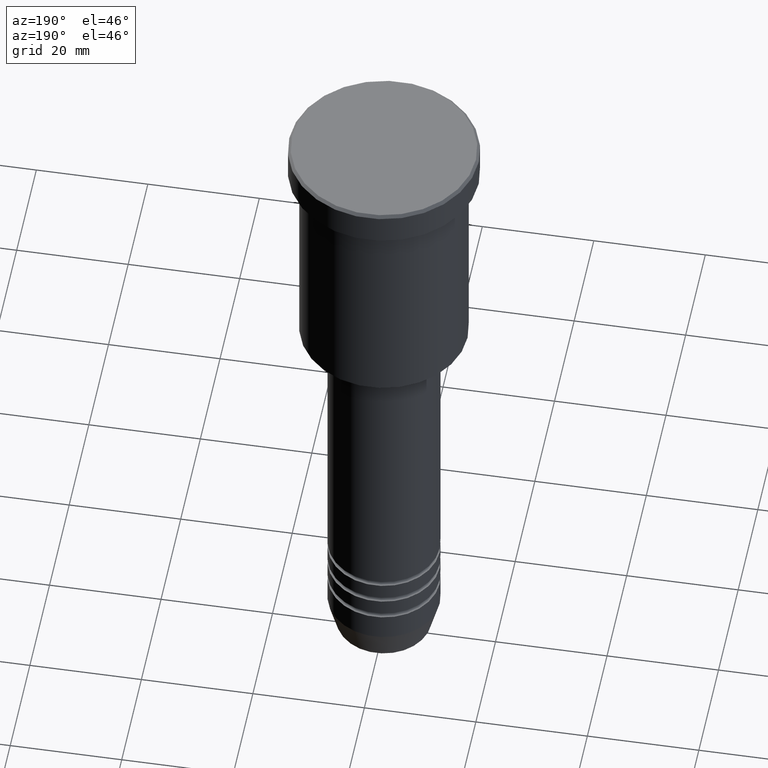
[diagram: clean part render]
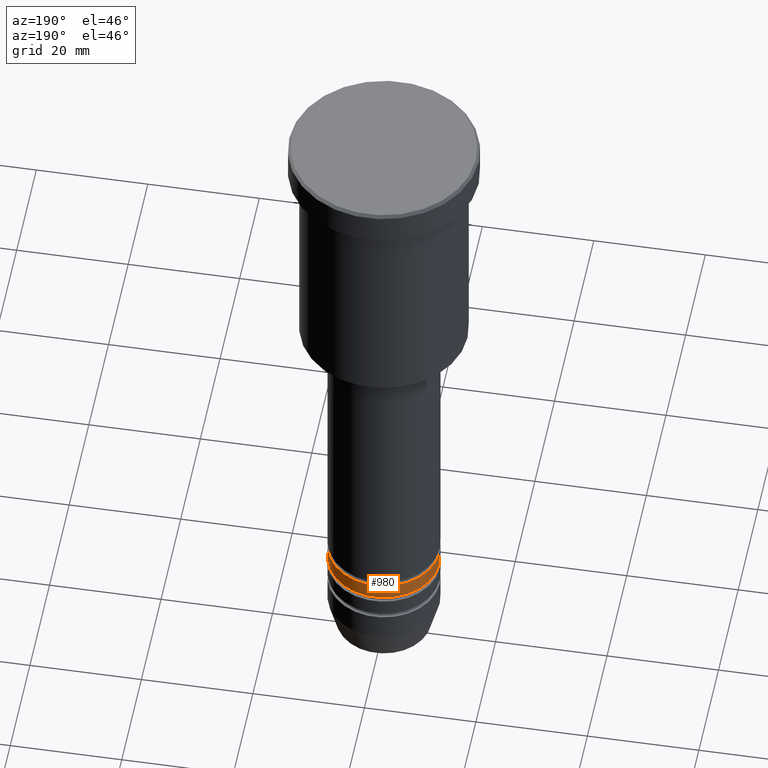
[diagram: same view with one face highlighted and labeled with its STEP entity id]
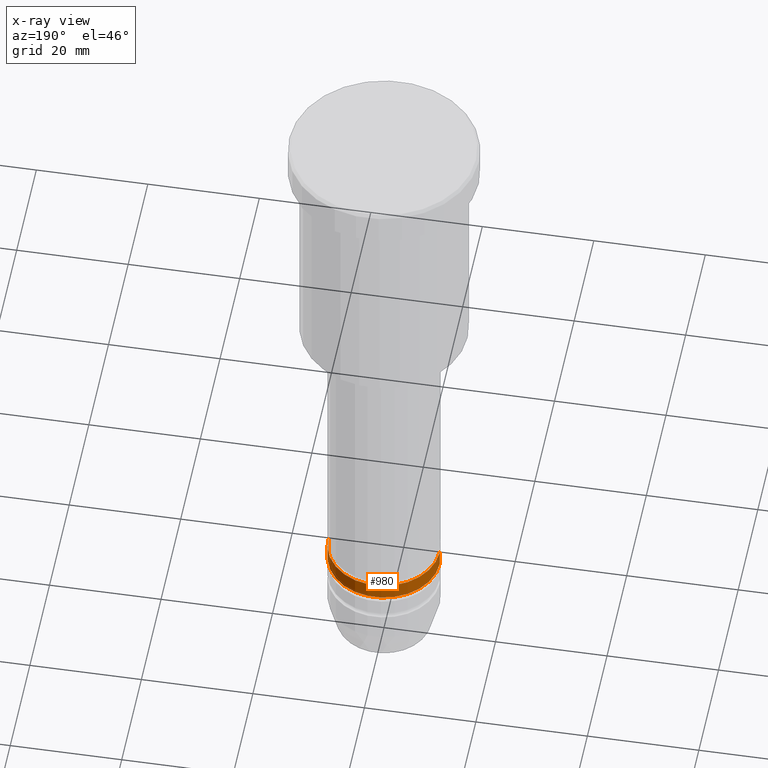
[diagram: x-ray of the same camera — body ghosted, the highlighted face saturated]
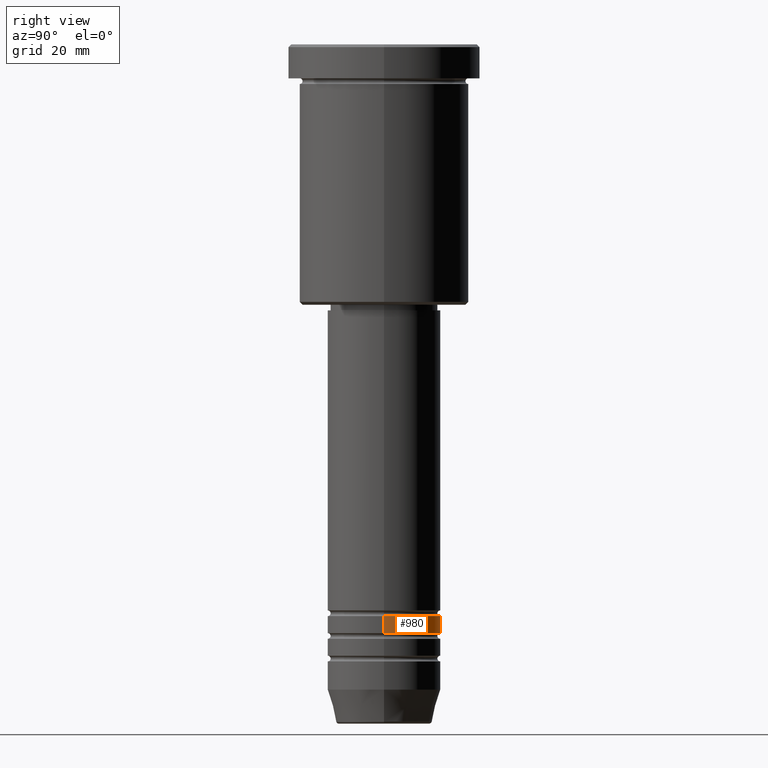
[diagram: same view with one face highlighted and labeled with its STEP entity id]
A machine part, auxiliary view. The second image highlights one B-rep face of the part: STEP entity #980.
The next image is the same camera in x-ray: the body ghosted, the highlighted face saturated — about 0% of this face is hidden behind the body in this view.
A second angle (right view) of the same face is appended — the face is thin or edge-on in the first view.
In plain terms, the highlighted cylindrical surface (partial cylindrical patch) has radius 10 mm, axis along (-0, -0, 1).
Its self-contained STEP definition (entity closure, byte-faithful):
#2 = CARTESIAN_POINT ( 'NONE',  ( -10.00000000000000178, 1.224646799147353454E-15, -103.9999999999999858 ) ) ;
#172 = ORIENTED_EDGE ( 'NONE', *, *, #367, .F. ) ;
#178 = ORIENTED_EDGE ( 'NONE', *, *, #728, .T. ) ;
#213 = CARTESIAN_POINT ( 'NONE',  ( -10.00000000000000000, 1.224646799147353256E-15, -100.9999999999999716 ) ) ;
#231 = DIRECTION ( 'NONE',  ( -0.000000000000000000, -0.000000000000000000, 1.000000000000000000 ) ) ;
#239 = LINE ( 'NONE', #712, #1022 ) ;
#273 = DIRECTION ( 'NONE',  ( 1.000000000000000000, 0.000000000000000000, 0.000000000000000000 ) ) ;
#309 = CARTESIAN_POINT ( 'NONE',  ( 0.000000000000000000, 0.000000000000000000, 0.000000000000000000 ) ) ;
#344 = CARTESIAN_POINT ( 'NONE',  ( 0.000000000000000000, 0.000000000000000000, -103.9999999999999858 ) ) ;
#367 = EDGE_CURVE ( 'NONE', #451, #991, #793, .T. ) ;
#396 = DIRECTION ( 'NONE',  ( 1.000000000000000000, 0.000000000000000000, 0.000000000000000000 ) ) ;
#409 = DIRECTION ( 'NONE',  ( -0.000000000000000000, -0.000000000000000000, 1.000000000000000000 ) ) ;
#425 = EDGE_CURVE ( 'NONE', #435, #451, #918, .T. ) ;
#435 = VERTEX_POINT ( 'NONE', #628 ) ;
#451 = VERTEX_POINT ( 'NONE', #841 ) ;
#467 = DIRECTION ( 'NONE',  ( -0.000000000000000000, -0.000000000000000000, 1.000000000000000000 ) ) ;
#486 = CYLINDRICAL_SURFACE ( 'NONE', #747, 10.00000000000000178 ) ;
#595 = DIRECTION ( 'NONE',  ( 1.000000000000000000, 0.000000000000000000, 0.000000000000000000 ) ) ;
#610 = CIRCLE ( 'NONE', #1179, 10.00000000000000178 ) ;
#628 = CARTESIAN_POINT ( 'NONE',  ( 10.00000000000000178, 0.000000000000000000, -103.9999999999999858 ) ) ;
#642 = CARTESIAN_POINT ( 'NONE',  ( 0.000000000000000000, 0.000000000000000000, -100.9999999999999716 ) ) ;
#653 = AXIS2_PLACEMENT_3D ( 'NONE', #642, #848, #273 ) ;
#712 = CARTESIAN_POINT ( 'NONE',  ( -10.00000000000000178, 1.224646799147353454E-15, 0.000000000000000000 ) ) ;
#728 = EDGE_CURVE ( 'NONE', #804, #991, #239, .T. ) ;
#747 = AXIS2_PLACEMENT_3D ( 'NONE', #309, #1122, #396 ) ;
#753 = EDGE_CURVE ( 'NONE', #435, #804, #610, .T. ) ;
#793 = CIRCLE ( 'NONE', #653, 10.00000000000000000 ) ;
#804 = VERTEX_POINT ( 'NONE', #2 ) ;
#835 = CARTESIAN_POINT ( 'NONE',  ( 10.00000000000000178, 0.000000000000000000, 0.000000000000000000 ) ) ;
#841 = CARTESIAN_POINT ( 'NONE',  ( 10.00000000000000000, 0.000000000000000000, -100.9999999999999716 ) ) ;
#848 = DIRECTION ( 'NONE',  ( -0.000000000000000000, -0.000000000000000000, 1.000000000000000000 ) ) ;
#849 = ORIENTED_EDGE ( 'NONE', *, *, #425, .F. ) ;
#872 = EDGE_LOOP ( 'NONE', ( #1121, #178, #172, #849 ) ) ;
#914 = VECTOR ( 'NONE', #467, 1000.000000000000000 ) ;
#918 = LINE ( 'NONE', #835, #914 ) ;
#980 = ADVANCED_FACE ( 'NONE', ( #1128 ), #486, .T. ) ;
#991 = VERTEX_POINT ( 'NONE', #213 ) ;
#1022 = VECTOR ( 'NONE', #409, 1000.000000000000000 ) ;
#1121 = ORIENTED_EDGE ( 'NONE', *, *, #753, .T. ) ;
#1122 = DIRECTION ( 'NONE',  ( -0.000000000000000000, -0.000000000000000000, 1.000000000000000000 ) ) ;
#1128 = FACE_OUTER_BOUND ( 'NONE', #872, .T. ) ;
#1179 = AXIS2_PLACEMENT_3D ( 'NONE', #344, #231, #595 ) ;